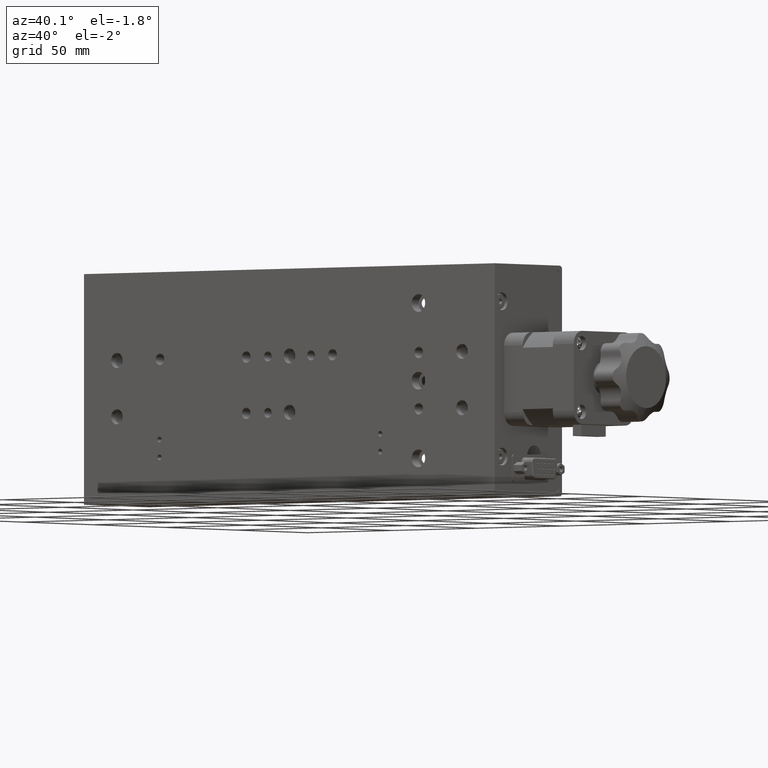
[diagram: clean part render]
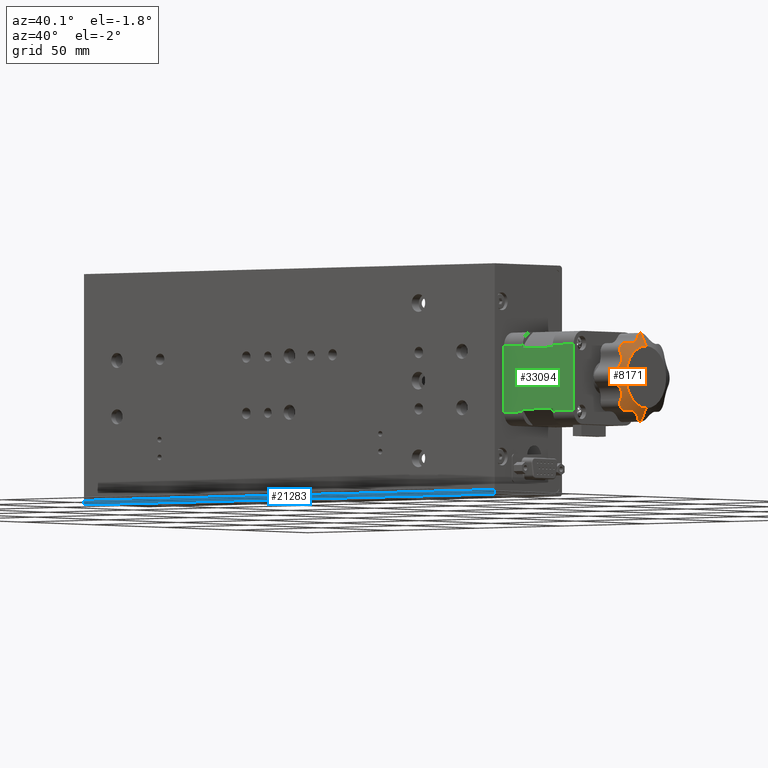
[diagram: same view with three faces highlighted in distinct colors, each labeled with its STEP entity id]
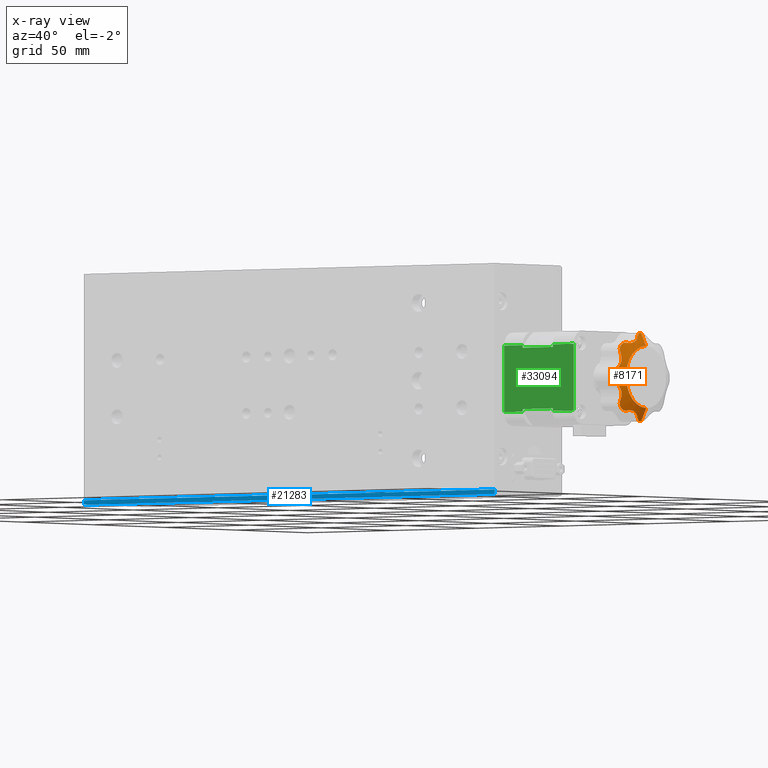
[diagram: x-ray of the same camera — body ghosted, the three highlighted faces saturated]
A machine part, auxiliary view with three faces highlighted in distinct colors.
The next image is the same camera in x-ray (body ghosted, the three faces saturated) — at least one of them is partly hidden behind the body in this view.
Their STEP definitions:

[orange] entity #8171 — the highlighted conical surface has half-angle 63 deg.
#38 = CARTESIAN_POINT ( 'NONE',  ( 184.4997281778311700, 24.48546536711743800, -18.66796470288773000 ) ) ;
#151 = B_SPLINE_CURVE_WITH_KNOTS ( 'NONE', 3,
 ( #9082, #958, #3710, #22827 ),
 .UNSPECIFIED., .F., .F.,
 ( 4, 4 ),
 ( 2.128886231613087700E-007, 0.0007293649178631331900 ),
 .UNSPECIFIED. ) ;
#436 = CIRCLE ( 'NONE', #9269, 19.88783151651546500 ) ;
#779 = CARTESIAN_POINT ( 'NONE',  ( 184.6624876279491000, 12.24651787764060100, -10.62220015011039800 ) ) ;
#785 = CARTESIAN_POINT ( 'NONE',  ( 185.4667672571537800, 20.66361874730982600, 15.57582878604097200 ) ) ;
#958 = CARTESIAN_POINT ( 'NONE',  ( 184.5792437131486800, 16.64946320855018100, 15.29355972806284900 ) ) ;
#969 = EDGE_LOOP ( 'NONE', ( #10336, #3343, #4688, #21521, #29404, #34514, #13272, #34087, #5129, #29670, #32625, #30097, #14862, #18901, #5487, #20476, #9121, #9356, #29349, #29970, #18298, #20904 ) ) ;
#1043 = CARTESIAN_POINT ( 'NONE',  ( 184.0000000000000300, 27.50000000000001100, -3.420913654640839100E-014 ) ) ;
#1274 = DIRECTION ( 'NONE',  ( 1.000000000000000000, -8.054943531356615600E-016, -1.390540119859488200E-015 ) ) ;
#1317 = CARTESIAN_POINT ( 'NONE',  ( 184.6624876279491300, 9.203129597308068500, 3.274810888164022800 ) ) ;
#1436 = VERTEX_POINT ( 'NONE', #24047 ) ;
#1473 = AXIS2_PLACEMENT_3D ( 'NONE', #29062, #12708, #31826 ) ;
#1595 = CARTESIAN_POINT ( 'NONE',  ( 185.4338197077304900, 20.15260713818911900, 15.41300267155289400 ) ) ;
#1679 = EDGE_CURVE ( 'NONE', #15190, #16986, #6298, .T. ) ;
#1818 = VERTEX_POINT ( 'NONE', #21448 ) ;
#1917 = CARTESIAN_POINT ( 'NONE',  ( 185.3225106727056800, 10.92889408719598500, -4.952345024021327400 ) ) ;
#1939 = B_SPLINE_CURVE_WITH_KNOTS ( 'NONE', 3,
 ( #779, #3515, #22636, #6258, #25397, #9010 ),
 .UNSPECIFIED., .F., .F.,
 ( 4, 2, 4 ),
 ( 2.128886231646257500E-007, 0.001425860909439205500, 0.002851508930255246100 ),
 .UNSPECIFIED. ) ;
#2037 = CARTESIAN_POINT ( 'NONE',  ( 184.7844690265437200, 12.30524556251451800, -10.28760725010459800 ) ) ;
#2066 = EDGE_CURVE ( 'NONE', #23944, #18555, #14516, .T. ) ;
#2104 = CARTESIAN_POINT ( 'NONE',  ( 185.4616876282445600, 20.49356804437579500, -15.51291625088309800 ) ) ;
#2370 = CARTESIAN_POINT ( 'NONE',  ( 185.4519293113118000, 12.04493243812661700, 7.180730379740627000 ) ) ;
#2535 = CARTESIAN_POINT ( 'NONE',  ( 184.3045522164380300, 12.20390211689355600, 11.75498693602056100 ) ) ;
#2667 = CARTESIAN_POINT ( 'NONE',  ( 184.5055536226903700, 24.50140130157206300, 18.65707282124847300 ) ) ;
#2705 = CIRCLE ( 'NONE', #5415, 19.88783151651546500 ) ;
#2782 = CARTESIAN_POINT ( 'NONE',  ( 184.1340889782051400, 25.56834694938514500, -19.53368578314135500 ) ) ;
#2868 = DIRECTION ( 'NONE',  ( -0.4539904997395432500, 4.398779807858269300E-016, 0.8910065241883696800 ) ) ;
#2870 = DIRECTION ( 'NONE',  ( -0.4539904997395457500, 4.006124158357226200E-016, -0.8910065241883684500 ) ) ;
#3105 = CARTESIAN_POINT ( 'NONE',  ( 184.8159028688820300, 17.29861524436926600, -15.17962068095771500 ) ) ;
#3266 = CARTESIAN_POINT ( 'NONE',  ( 184.0593759186634800, 7.784446417491411200, -1.499709208656855800 ) ) ;
#3343 = ORIENTED_EDGE ( 'NONE', *, *, #3745, .F. ) ;
#3360 = CARTESIAN_POINT ( 'NONE',  ( 185.0681554785692800, 18.15878121155510500, -15.14191605657909400 ) ) ;
#3425 = EDGE_CURVE ( 'NONE', #24530, #6699, #28095, .T. ) ;
#3515 = CARTESIAN_POINT ( 'NONE',  ( 184.4997279871318800, 12.16815759479220700, -11.06864707441475400 ) ) ;
#3540 = CIRCLE ( 'NONE', #25479, 19.88783151651546500 ) ;
#3552 = CARTESIAN_POINT ( 'NONE',  ( 184.3329612935859000, 15.84664911320747500, 15.30301273992485300 ) ) ;
#3710 = CARTESIAN_POINT ( 'NONE',  ( 184.5025853109542000, 16.41892421723933300, 15.31370849898456900 ) ) ;
#3745 = EDGE_CURVE ( 'NONE', #24530, #30451, #33211, .T. ) ;
#3789 = DIRECTION ( 'NONE',  ( 1.395605930821559500E-015, 0.0000000000000000000, 1.000000000000000000 ) ) ;
#4057 = CARTESIAN_POINT ( 'NONE',  ( 184.1340889782051100, 7.966314216858666700, 1.931653050614544200 ) ) ;
#4327 = EDGE_CURVE ( 'NONE', #6699, #16981, #2705, .T. ) ;
#4688 = ORIENTED_EDGE ( 'NONE', *, *, #3425, .T. ) ;
#4695 = CARTESIAN_POINT ( 'NONE',  ( 185.4519292569572700, 11.49407343093472300, -5.850839287976180400 ) ) ;
#4856 = CARTESIAN_POINT ( 'NONE',  ( 185.4690261800603000, 21.33720387912078900, -15.85146722573953900 ) ) ;
#5129 = ORIENTED_EDGE ( 'NONE', *, *, #2066, .T. ) ;
#5130 = CARTESIAN_POINT ( 'NONE',  ( 185.4715224530974600, 11.72754534817749700, 6.344713980106604400 ) ) ;
#5133 = CARTESIAN_POINT ( 'NONE',  ( 184.0000000000000300, 27.50000000000001100, -3.420913654640839100E-014 ) ) ;
#5290 = CARTESIAN_POINT ( 'NONE',  ( 184.5055536155510100, 12.18712781607042000, 11.07221325748905500 ) ) ;
#5415 = AXIS2_PLACEMENT_3D ( 'NONE', #13121, #32248, #15872 ) ;
#5439 = CARTESIAN_POINT ( 'NONE',  ( 184.6624876279491900, 24.22518911183561800, 18.29687040269187300 ) ) ;
#5487 = ORIENTED_EDGE ( 'NONE', *, *, #23164, .T. ) ;
#5495 = EDGE_CURVE ( 'NONE', #16986, #11264, #151, .T. ) ;
#5539 = EDGE_CURVE ( 'NONE', #9108, #6103, #29262, .T. ) ;
#5551 = CARTESIAN_POINT ( 'NONE',  ( 184.0000000000000000, 26.45167253179349800, -19.86018257591585400 ) ) ;
#5871 = VERTEX_POINT ( 'NONE', #32969 ) ;
#5985 = CARTESIAN_POINT ( 'NONE',  ( 184.0000000000000600, 27.50000000000001100, 19.88783151651546500 ) ) ;
#6014 = CARTESIAN_POINT ( 'NONE',  ( 184.1914101639428300, 8.102738441091874600, -2.124327132788316900 ) ) ;
#6103 = VERTEX_POINT ( 'NONE', #13537 ) ;
#6143 = VERTEX_POINT ( 'NONE', #27547 ) ;
#6258 = CARTESIAN_POINT ( 'NONE',  ( 184.1340889378582800, 12.32171329305557000, -12.44651678098834900 ) ) ;
#6290 = CARTESIAN_POINT ( 'NONE',  ( 184.2029685174676400, 15.33219541992860300, 15.22528648590329900 ) ) ;
#6291 = VECTOR ( 'NONE', #2868, 1000.000000000000100 ) ;
#6298 = B_SPLINE_CURVE_WITH_KNOTS ( 'NONE', 3,
 ( #7234, #23963, #34403, #9260, #34004, #9134, #17964, #21333, #785, #31357, #1595, #8550, #13090, #15710, #18001, #25756, #14132, #23346 ),
 .UNSPECIFIED., .F., .F.,
 ( 4, 2, 2, 2, 2, 2, 2, 2, 4 ),
 ( 2.564491608464168600E-007, 0.002139081010340496400, 0.003208493290930317800, 0.004277905571520138800, 0.004812611711815057000, 0.005347317852109973600, 0.006416730132699790200, 0.007486142413289606800, 0.008555554693879422600 ),
 .UNSPECIFIED. ) ;
#6317 = VECTOR ( 'NONE', #2870, 1000.000000000000000 ) ;
#6699 = VERTEX_POINT ( 'NONE', #5985 ) ;
#6795 = CARTESIAN_POINT ( 'NONE',  ( 184.0000000000000000, 7.639817424084204900, 1.048327468206284200 ) ) ;
#7234 = CARTESIAN_POINT ( 'NONE',  ( 184.6624876279491900, 24.22518911183561800, 18.29687040269187300 ) ) ;
#7286 = CARTESIAN_POINT ( 'NONE',  ( 184.9063469930233300, 9.759133075833030800, -3.664777813653861600 ) ) ;
#7306 = EDGE_CURVE ( 'NONE', #11264, #23944, #26188, .T. ) ;
#7413 = CARTESIAN_POINT ( 'NONE',  ( 185.4715224592072200, 11.86080000766872200, -6.666419164477229500 ) ) ;
#7542 = CARTESIAN_POINT ( 'NONE',  ( 184.0593759180045800, 14.61945291401773200, -15.00145618236275900 ) ) ;
#7600 = CARTESIAN_POINT ( 'NONE',  ( 185.3962144957780000, 22.12557803211641200, -16.28608713752259600 ) ) ;
#7864 = CARTESIAN_POINT ( 'NONE',  ( 185.4479042270338300, 11.49155629202330800, 5.859439804940299400 ) ) ;
#8038 = CARTESIAN_POINT ( 'NONE',  ( 184.6624876279491300, 12.24651787764047300, 10.62220015011035000 ) ) ;
#8050 = DIRECTION ( 'NONE',  ( 1.982541115402067700E-015, 0.0000000000000000000, 1.000000000000000000 ) ) ;
#8085 = CARTESIAN_POINT ( 'NONE',  ( 184.4321513908461700, 16.18629150101511300, 15.31370849898456900 ) ) ;
#8171 = ADVANCED_FACE ( 'NONE', ( #28418 ), #25011, .T. ) ;
#8245 = EDGE_CURVE ( 'NONE', #21032, #21211, #19927, .T. ) ;
#8284 = CARTESIAN_POINT ( 'NONE',  ( 184.0000000000000300, 12.71545076329402100, -13.30199031336000100 ) ) ;
#8377 = CARTESIAN_POINT ( 'NONE',  ( 187.0000000000000600, 27.50000000000000700, 13.99999999999994800 ) ) ;
#8393 = AXIS2_PLACEMENT_3D ( 'NONE', #10680, #16047, #8050 ) ;
#8490 = AXIS2_PLACEMENT_3D ( 'NONE', #29329, #12947, #32066 ) ;
#8550 = CARTESIAN_POINT ( 'NONE',  ( 185.3782249368033200, 19.63695829397433100, 15.28219731838588300 ) ) ;
#8758 = CARTESIAN_POINT ( 'NONE',  ( 184.3674099949589000, 8.520441163076050400, -2.678406106052258800 ) ) ;
#9010 = CARTESIAN_POINT ( 'NONE',  ( 184.0000000000000300, 12.71545076329402100, -13.30199031336000100 ) ) ;
#9045 = CARTESIAN_POINT ( 'NONE',  ( 184.0383439934945200, 14.50770642523900700, 14.96195996795478100 ) ) ;
#9082 = CARTESIAN_POINT ( 'NONE',  ( 184.6624876279491300, 16.87779984988899100, 15.25348212235906000 ) ) ;
#9108 = VERTEX_POINT ( 'NONE', #32080 ) ;
#9121 = ORIENTED_EDGE ( 'NONE', *, *, #19727, .T. ) ;
#9134 = CARTESIAN_POINT ( 'NONE',  ( 185.4519292569573000, 21.64916071202339500, 16.00592656906511400 ) ) ;
#9260 = CARTESIAN_POINT ( 'NONE',  ( 185.3225106727057600, 22.54765497597828600, 16.57110591280388000 ) ) ;
#9269 = AXIS2_PLACEMENT_3D ( 'NONE', #29031, #12681, #31795 ) ;
#9356 = ORIENTED_EDGE ( 'NONE', *, *, #21442, .T. ) ;
#9660 = CARTESIAN_POINT ( 'NONE',  ( 184.6624876279491300, 16.87779984988899100, 15.25348212235906000 ) ) ;
#9757 = EDGE_CURVE ( 'NONE', #30451, #6143, #34559, .T. ) ;
#9888 = B_SPLINE_CURVE_WITH_KNOTS ( 'NONE', 3,
 ( #16946, #3105, #19726, #3360 ),
 .UNSPECIFIED., .F., .F.,
 ( 4, 4 ),
 ( 2.131679597235992300E-007, 0.001345775553808593400 ),
 .UNSPECIFIED. ) ;
#10164 = CARTESIAN_POINT ( 'NONE',  ( 185.4479042614597400, 12.03707112431108300, -7.176428988280855800 ) ) ;
#10180 = EDGE_CURVE ( 'NONE', #14015, #9108, #32371, .T. ) ;
#10290 = CARTESIAN_POINT ( 'NONE',  ( 184.1914101614185300, 15.28619092501267400, -15.21806130307870400 ) ) ;
#10336 = ORIENTED_EDGE ( 'NONE', *, *, #9757, .F. ) ;
#10344 = CARTESIAN_POINT ( 'NONE',  ( 185.2481759545138100, 22.85061050871392800, -16.80897287478969600 ) ) ;
#10378 = CARTESIAN_POINT ( 'NONE',  ( 184.9063472167102600, 12.36392355791021900, 9.953297449060510600 ) ) ;
#10506 = CARTESIAN_POINT ( 'NONE',  ( 184.6624876279491300, 12.24651787764047300, 10.62220015011035000 ) ) ;
#10626 = CARTESIAN_POINT ( 'NONE',  ( 185.3782248456929300, 11.13384416448087000, 5.246134681423643400 ) ) ;
#10680 = CARTESIAN_POINT ( 'NONE',  ( 187.0000000000000300, 27.50000000000000700, -3.664603343001005000E-014 ) ) ;
#10900 = CARTESIAN_POINT ( 'NONE',  ( 184.6624876279491900, 24.22518911183561800, 18.29687040269187300 ) ) ;
#11264 = VERTEX_POINT ( 'NONE', #8085 ) ;
#11483 = EDGE_CURVE ( 'NONE', #5871, #12739, #1939, .T. ) ;
#11539 = CARTESIAN_POINT ( 'NONE',  ( 184.5812778788823600, 9.017969995348615000, -3.144944577088828000 ) ) ;
#11582 = DIRECTION ( 'NONE',  ( 1.395605930821559500E-015, 0.0000000000000000000, 1.000000000000000000 ) ) ;
#11613 = CARTESIAN_POINT ( 'NONE',  ( 184.0000000000000300, 14.19800968663947300, 14.78454923670558000 ) ) ;
#11854 = EDGE_CURVE ( 'NONE', #18555, #14015, #14381, .T. ) ;
#12681 = DIRECTION ( 'NONE',  ( 1.000000000000000000, -8.054943531356615600E-016, -1.390540119859488200E-015 ) ) ;
#12708 = DIRECTION ( 'NONE',  ( 1.000000000000000000, -8.054943531356615600E-016, -1.390540119859488200E-015 ) ) ;
#12739 = VERTEX_POINT ( 'NONE', #8284 ) ;
#12904 = CARTESIAN_POINT ( 'NONE',  ( 185.3782249368032600, 12.21780268161389700, -7.863041706025180500 ) ) ;
#12915 = CARTESIAN_POINT ( 'NONE',  ( 184.0256971238457600, 14.40556019771426800, -14.90344518668382000 ) ) ;
#12947 = DIRECTION ( 'NONE',  ( 1.000000000000000000, -8.054943531356615600E-016, -1.390540119859488200E-015 ) ) ;
#12968 = CARTESIAN_POINT ( 'NONE',  ( 185.0681554785692800, 18.15878121155510500, -15.14191605657909400 ) ) ;
#13036 = CARTESIAN_POINT ( 'NONE',  ( 184.3674099899103900, 15.97334434495742000, -15.31449387680387600 ) ) ;
#13088 = CARTESIAN_POINT ( 'NONE',  ( 184.8680802084595600, 23.89641639276961600, -17.82811584045509100 ) ) ;
#13090 = CARTESIAN_POINT ( 'NONE',  ( 185.3234121039777200, 19.28953390261072400, 15.22019407640730800 ) ) ;
#13121 = CARTESIAN_POINT ( 'NONE',  ( 184.0000000000000300, 27.50000000000001100, -3.420913654640839100E-014 ) ) ;
#13272 = ORIENTED_EDGE ( 'NONE', *, *, #5495, .T. ) ;
#13336 = CARTESIAN_POINT ( 'NONE',  ( 185.1806272532480800, 10.48796693978338400, 4.407491966382813200 ) ) ;
#13522 = CARTESIAN_POINT ( 'NONE',  ( 184.0593759186635300, 26.00029079134296600, 19.71555358250857600 ) ) ;
#13537 = CARTESIAN_POINT ( 'NONE',  ( 184.0000000000000000, 7.639817424084204900, 1.048327468206284200 ) ) ;
#13783 = CARTESIAN_POINT ( 'NONE',  ( 184.6624876279491300, 24.22518911183572900, -18.29687040269192300 ) ) ;
#14015 = VERTEX_POINT ( 'NONE', #24495 ) ;
#14132 = CARTESIAN_POINT ( 'NONE',  ( 184.7844690265437700, 17.21239274989482100, 15.19475443748518000 ) ) ;
#14381 = B_SPLINE_CURVE_WITH_KNOTS ( 'NONE', 3,
 ( #24276, #27055, #16153, #35303, #18919, #2535, #21651, #5290, #24384, #8038 ),
 .UNSPECIFIED., .F., .F.,
 ( 4, 2, 2, 2, 4 ),
 ( 1.845941825708605100E-006, 0.0007127976189506830600, 0.001423749296075657700, 0.002134700973200631900, 0.002845652650325606500 ),
 .UNSPECIFIED. ) ;
#14393 = CARTESIAN_POINT ( 'NONE',  ( 184.4321513908461700, 16.18629150101511300, 15.31370849898456900 ) ) ;
#14464 = CARTESIAN_POINT ( 'NONE',  ( 184.0000000000000000, 26.45167253179349800, -19.86018257591585400 ) ) ;
#14516 = CIRCLE ( 'NONE', #15568, 19.88783151651546500 ) ;
#14862 = ORIENTED_EDGE ( 'NONE', *, *, #31138, .T. ) ;
#15101 = VERTEX_POINT ( 'NONE', #16144 ) ;
#15190 = VERTEX_POINT ( 'NONE', #10900 ) ;
#15568 = AXIS2_PLACEMENT_3D ( 'NONE', #5133, #1274, #11582 ) ;
#15649 = CARTESIAN_POINT ( 'NONE',  ( 185.1806272895484800, 12.35410860756161000, -8.912756354989081600 ) ) ;
#15710 = CARTESIAN_POINT ( 'NONE',  ( 185.1806272895485700, 18.58724364501040300, 15.14589139243814100 ) ) ;
#15779 = CARTESIAN_POINT ( 'NONE',  ( 184.5812778587598800, 16.65504283533704200, -15.29258039298539800 ) ) ;
#15872 = DIRECTION ( 'NONE',  ( 1.395605930821559500E-015, 0.0000000000000000000, 1.000000000000000000 ) ) ;
#15987 = CARTESIAN_POINT ( 'NONE',  ( 185.1076970187258700, 12.39135832512152600, 9.269836976318593700 ) ) ;
#16047 = DIRECTION ( 'NONE',  ( -1.000000000000000000, 8.054943531356615600E-016, 1.390540119859488200E-015 ) ) ;
#16110 = CARTESIAN_POINT ( 'NONE',  ( 184.8957180678858900, 9.746095789160055000, 3.684008748971941700 ) ) ;
#16144 = CARTESIAN_POINT ( 'NONE',  ( 184.0000000000000000, 7.639817424084204900, -1.048327468206338400 ) ) ;
#16153 = CARTESIAN_POINT ( 'NONE',  ( 184.0593759180046600, 12.49854381763695500, 12.88054708598174800 ) ) ;
#16292 = CARTESIAN_POINT ( 'NONE',  ( 184.1914101639428900, 25.37567286721144200, 19.39726155890809500 ) ) ;
#16322 = B_SPLINE_CURVE_WITH_KNOTS ( 'NONE', 3,
 ( #16865, #33287, #3266, #22397, #6014, #25149, #8758, #27867, #11539, #30626 ),
 .UNSPECIFIED., .F., .F.,
 ( 4, 2, 2, 2, 4 ),
 ( 1.845941822942555700E-006, 0.0007127976259173259300, 0.001423749310011708100, 0.002134700994106089300, 0.002845652678200470300 ),
 .UNSPECIFIED. ) ;
#16393 = CARTESIAN_POINT ( 'NONE',  ( 184.3610719225172800, 24.80607272539044000, -18.99348869398903600 ) ) ;
#16586 = VERTEX_POINT ( 'NONE', #29790 ) ;
#16865 = CARTESIAN_POINT ( 'NONE',  ( 184.0000000000000000, 7.639817424084204900, -1.048327468206338400 ) ) ;
#16946 = CARTESIAN_POINT ( 'NONE',  ( 184.6624876279491000, 16.87779984988912200, -15.25348212235911300 ) ) ;
#16981 = VERTEX_POINT ( 'NONE', #28784 ) ;
#16986 = VERTEX_POINT ( 'NONE', #9660 ) ;
#17033 = CARTESIAN_POINT ( 'NONE',  ( 184.3809031888826600, 16.01702634573043900, 15.31370849898457100 ) ) ;
#17095 = CARTESIAN_POINT ( 'NONE',  ( 187.0000000000000000, 27.50000000000001100, -14.00000000000003700 ) ) ;
#17677 = CARTESIAN_POINT ( 'NONE',  ( 184.4997281778312300, 8.832035297112309300, 3.014534632882243800 ) ) ;
#17964 = CARTESIAN_POINT ( 'NONE',  ( 185.4712212983298200, 21.33165703847993200, 15.84595546684293100 ) ) ;
#18001 = CARTESIAN_POINT ( 'NONE',  ( 185.0936132756211500, 18.23762914353434200, 15.13437783158853700 ) ) ;
#18298 = ORIENTED_EDGE ( 'NONE', *, *, #8245, .T. ) ;
#18299 = CARTESIAN_POINT ( 'NONE',  ( 185.1076968662358700, 10.26181197080224700, -4.128657845916117200 ) ) ;
#18416 = CARTESIAN_POINT ( 'NONE',  ( 184.8957182112122300, 12.34110641053214700, -9.948918039722388000 ) ) ;
#18425 = CARTESIAN_POINT ( 'NONE',  ( 184.0000000000000000, 14.19800968663961500, -14.78454923670564400 ) ) ;
#18476 = CARTESIAN_POINT ( 'NONE',  ( 185.4413483650830600, 20.20787927955925100, -15.42465185180261500 ) ) ;
#18555 = VERTEX_POINT ( 'NONE', #31679 ) ;
#18755 = CARTESIAN_POINT ( 'NONE',  ( 184.0000000000000000, 14.19800968663961500, -14.78454923670564400 ) ) ;
#18761 = CARTESIAN_POINT ( 'NONE',  ( 185.3777368135645200, 12.21840039836448900, 7.866246472115230800 ) ) ;
#18880 = CARTESIAN_POINT ( 'NONE',  ( 184.6624876279491300, 9.203129597308068500, 3.274810888164022800 ) ) ;
#18901 = ORIENTED_EDGE ( 'NONE', *, *, #30394, .T. ) ;
#18919 = CARTESIAN_POINT ( 'NONE',  ( 184.1914101614185900, 12.28193869692102100, 12.21380907498684300 ) ) ;
#19060 = CARTESIAN_POINT ( 'NONE',  ( 184.3674099949589600, 24.82159389394747300, 18.97955883692390700 ) ) ;
#19160 = CARTESIAN_POINT ( 'NONE',  ( 184.6624876279491300, 24.22518911183572900, -18.29687040269192300 ) ) ;
#19726 = CARTESIAN_POINT ( 'NONE',  ( 184.9521885518349800, 17.72529401834012200, -15.14191605657909400 ) ) ;
#19727 = EDGE_CURVE ( 'NONE', #12739, #24312, #33810, .T. ) ;
#19927 = B_SPLINE_CURVE_WITH_KNOTS ( 'NONE', 3,
 ( #19160, #38, #16393, #2782, #21903, #5551 ),
 .UNSPECIFIED., .F., .F.,
 ( 4, 2, 4 ),
 ( 2.561101793522169900E-007, 0.001425904833248683100, 0.002851553556318014000 ),
 .UNSPECIFIED. ) ;
#20170 = DIRECTION ( 'NONE',  ( 1.000000000000000000, -8.054943531356615600E-016, -1.390540119859488200E-015 ) ) ;
#20434 = CARTESIAN_POINT ( 'NONE',  ( 184.3610719225174000, 8.506511306011002900, 2.693927274609255300 ) ) ;
#20476 = ORIENTED_EDGE ( 'NONE', *, *, #11483, .T. ) ;
#20848 = B_SPLINE_CURVE_WITH_KNOTS ( 'NONE', 3,
 ( #26452, #7286, #18299, #1917, #21024, #4695, #23783, #7413, #26568, #10164, #29281, #12904, #32018, #15649, #34800, #18416, #2037, #21150 ),
 .UNSPECIFIED., .F., .F.,
 ( 4, 2, 2, 2, 2, 2, 2, 2, 4 ),
 ( 2.564491608337572600E-007, 0.002139081010340396200, 0.003208493290930175500, 0.004277905571519954900, 0.004812611711814844500, 0.005347317852109733300, 0.006416730132699517900, 0.007486142413289302400, 0.008555554693879087800 ),
 .UNSPECIFIED. ) ;
#20904 = ORIENTED_EDGE ( 'NONE', *, *, #25336, .T. ) ;
#21024 = CARTESIAN_POINT ( 'NONE',  ( 185.3777367299795500, 11.13200074520000600, -5.243445996837364100 ) ) ;
#21032 = VERTEX_POINT ( 'NONE', #13783 ) ;
#21150 = CARTESIAN_POINT ( 'NONE',  ( 184.6624876279491000, 12.24651787764060100, -10.62220015011039800 ) ) ;
#21209 = CARTESIAN_POINT ( 'NONE',  ( 185.4756893889789100, 21.05743076933264700, -15.72575422500005400 ) ) ;
#21211 = VERTEX_POINT ( 'NONE', #14464 ) ;
#21333 = CARTESIAN_POINT ( 'NONE',  ( 185.4715224592073400, 20.83358083552232300, 15.63919999233109200 ) ) ;
#21442 = EDGE_CURVE ( 'NONE', #24312, #1436, #27228, .T. ) ;
#21448 = CARTESIAN_POINT ( 'NONE',  ( 185.0681554785692800, 18.15878121155510500, -15.14191605657909400 ) ) ;
#21471 = CARTESIAN_POINT ( 'NONE',  ( 185.4712213111370400, 11.93354007121230400, 6.843104834371478000 ) ) ;
#21521 = ORIENTED_EDGE ( 'NONE', *, *, #4327, .T. ) ;
#21651 = CARTESIAN_POINT ( 'NONE',  ( 184.3674099899104100, 12.18550612319584800, 11.52665565504206500 ) ) ;
#21677 = CARTESIAN_POINT ( 'NONE',  ( 184.0000000000000600, 26.45167253179350900, 19.86018257591578300 ) ) ;
#21807 = CARTESIAN_POINT ( 'NONE',  ( 184.5812778788824700, 24.35505542291086600, 18.48203000465131800 ) ) ;
#21903 = CARTESIAN_POINT ( 'NONE',  ( 184.0515187176439400, 25.98888942864408600, -19.73450244827626300 ) ) ;
#22012 = CARTESIAN_POINT ( 'NONE',  ( 187.0000000000000000, 27.50000000000000700, -14.00000000000002100 ) ) ;
#22321 = CARTESIAN_POINT ( 'NONE',  ( 187.0000000000000600, 27.50000000000000700, 13.99999999999994800 ) ) ;
#22397 = CARTESIAN_POINT ( 'NONE',  ( 184.1420244716242400, 7.984064295957398200, -1.921630104900801600 ) ) ;
#22636 = CARTESIAN_POINT ( 'NONE',  ( 184.3610722483293800, 12.16468096182709100, -11.52552917857907900 ) ) ;
#22677 = CARTESIAN_POINT ( 'NONE',  ( 184.2438062084029600, 15.50362185888310200, 15.25881527042830000 ) ) ;
#22827 = CARTESIAN_POINT ( 'NONE',  ( 184.4321513908461700, 16.18629150101511300, 15.31370849898456900 ) ) ;
#23164 = EDGE_CURVE ( 'NONE', #16586, #5871, #20848, .T. ) ;
#23171 = CARTESIAN_POINT ( 'NONE',  ( 184.0515187176439200, 7.765497551723780300, 1.511110571355628100 ) ) ;
#23346 = CARTESIAN_POINT ( 'NONE',  ( 184.6624876279491300, 16.87779984988899100, 15.25348212235906000 ) ) ;
#23783 = CARTESIAN_POINT ( 'NONE',  ( 185.4712212983297900, 11.65404453315689700, -6.168342961519626600 ) ) ;
#23944 = VERTEX_POINT ( 'NONE', #11613 ) ;
#23962 = CARTESIAN_POINT ( 'NONE',  ( 185.4291772330564900, 21.87017332738024700, -16.13133732989445700 ) ) ;
#23963 = CARTESIAN_POINT ( 'NONE',  ( 184.9063469930234500, 23.83522218634582000, 17.74086692416686600 ) ) ;
#24047 = CARTESIAN_POINT ( 'NONE',  ( 184.6624876279491000, 16.87779984988912200, -15.25348212235911300 ) ) ;
#24232 = CARTESIAN_POINT ( 'NONE',  ( 185.4667672483695900, 11.65217417295864700, 6.179722338723240500 ) ) ;
#24276 = CARTESIAN_POINT ( 'NONE',  ( 184.0000000000000300, 12.71545076329385900, 13.30199031335994600 ) ) ;
#24312 = VERTEX_POINT ( 'NONE', #18755 ) ;
#24384 = CARTESIAN_POINT ( 'NONE',  ( 184.5812778587599300, 12.20741960701432700, 10.84495716466245700 ) ) ;
#24401 = CARTESIAN_POINT ( 'NONE',  ( 184.0256971240977200, 26.22084002322583300, 19.79749433396677100 ) ) ;
#24495 = CARTESIAN_POINT ( 'NONE',  ( 184.6624876279491300, 12.24651787764047300, 10.62220015011035000 ) ) ;
#24530 = VERTEX_POINT ( 'NONE', #22321 ) ;
#24966 = EDGE_CURVE ( 'NONE', #16981, #15190, #27857, .T. ) ;
#25011 = CONICAL_SURFACE ( 'NONE', #8393, 13.99999999999998400, 1.099557428756430000 ) ;
#25149 = CARTESIAN_POINT ( 'NONE',  ( 184.3045522205685000, 8.371994495727101100, -2.503943576036402200 ) ) ;
#25336 = EDGE_CURVE ( 'NONE', #21211, #6143, #436, .T. ) ;
#25397 = CARTESIAN_POINT ( 'NONE',  ( 184.0515186887565400, 12.47708309700913700, -12.88588420570722800 ) ) ;
#25438 = CARTESIAN_POINT ( 'NONE',  ( 184.0941526861526800, 14.83045380898520400, 15.09278166667648500 ) ) ;
#25479 = AXIS2_PLACEMENT_3D ( 'NONE', #1043, #20170, #3789 ) ;
#25600 = EDGE_CURVE ( 'NONE', #1436, #1818, #9888, .T. ) ;
#25756 = CARTESIAN_POINT ( 'NONE',  ( 184.8957182112122000, 17.55108196027705200, 15.15889358946756200 ) ) ;
#26188 = B_SPLINE_CURVE_WITH_KNOTS ( 'NONE', 3,
 ( #14393, #17033, #3552, #22677, #6290, #25438, #9045, #28155 ),
 .UNSPECIFIED., .F., .F.,
 ( 4, 2, 2, 4 ),
 ( 0.0007293649178631331900, 0.001259900920961137000, 0.001790436924059145900, 0.002851508930255163700 ),
 .UNSPECIFIED. ) ;
#26452 = CARTESIAN_POINT ( 'NONE',  ( 184.6624876279491000, 9.203129597308068500, -3.274810888164069400 ) ) ;
#26568 = CARTESIAN_POINT ( 'NONE',  ( 185.4667672571537800, 11.92417121395884300, -6.836381252689726300 ) ) ;
#26696 = CARTESIAN_POINT ( 'NONE',  ( 184.1420244698525200, 15.05894719184567700, -15.15864815293861800 ) ) ;
#26748 = CARTESIAN_POINT ( 'NONE',  ( 185.3059522471157300, 22.61508061880200100, -16.62424057949537500 ) ) ;
#27009 = CARTESIAN_POINT ( 'NONE',  ( 185.4338196571570400, 11.40596968992724800, 5.703246881861035800 ) ) ;
#27055 = CARTESIAN_POINT ( 'NONE',  ( 184.0256971238458200, 12.59655481331589200, 13.09443980228520800 ) ) ;
#27228 = B_SPLINE_CURVE_WITH_KNOTS ( 'NONE', 3,
 ( #18425, #12915, #7542, #26696, #10290, #29412, #13036, #32150, #15779, #34926 ),
 .UNSPECIFIED., .F., .F.,
 ( 4, 2, 2, 2, 4 ),
 ( 1.845941825710805000E-006, 0.0007127976189506631200, 0.001423749296075615400, 0.002134700973200567700, 0.002845652650325519700 ),
 .UNSPECIFIED. ) ;
#27547 = CARTESIAN_POINT ( 'NONE',  ( 184.0000000000000000, 27.50000000000001100, -19.88783151651549400 ) ) ;
#27857 = B_SPLINE_CURVE_WITH_KNOTS ( 'NONE', 3,
 ( #21677, #24401, #13522, #32672, #16292, #35433, #19060, #2667, #21807, #5439 ),
 .UNSPECIFIED., .F., .F.,
 ( 4, 2, 2, 2, 4 ),
 ( 1.845941822925545800E-006, 0.0007127976259173466400, 0.001423749310011767800, 0.002134700994106188700, 0.002845652678200610000 ),
 .UNSPECIFIED. ) ;
#27867 = CARTESIAN_POINT ( 'NONE',  ( 184.5055536226903700, 8.842927178751470100, -2.998598698427655100 ) ) ;
#28095 = LINE ( 'NONE', #8377, #6291 ) ;
#28155 = CARTESIAN_POINT ( 'NONE',  ( 184.0000000000000300, 14.19800968663947300, 14.78454923670558000 ) ) ;
#28418 = FACE_OUTER_BOUND ( 'NONE', #969, .T. ) ;
#28784 = CARTESIAN_POINT ( 'NONE',  ( 184.0000000000000600, 26.45167253179350900, 19.86018257591578300 ) ) ;
#29031 = CARTESIAN_POINT ( 'NONE',  ( 184.0000000000000300, 27.50000000000001100, -3.420913654640839100E-014 ) ) ;
#29062 = CARTESIAN_POINT ( 'NONE',  ( 187.0000000000000300, 27.50000000000000700, -3.664603343001005000E-014 ) ) ;
#29221 = CARTESIAN_POINT ( 'NONE',  ( 185.2234977601907000, 18.73945443920684500, -15.14191605657909700 ) ) ;
#29262 = B_SPLINE_CURVE_WITH_KNOTS ( 'NONE', 3,
 ( #1317, #17677, #20434, #4057, #23171, #6795 ),
 .UNSPECIFIED., .F., .F.,
 ( 4, 2, 4 ),
 ( 2.561101793818367300E-007, 0.001425904833248745800, 0.002851553556318110200 ),
 .UNSPECIFIED. ) ;
#29281 = CARTESIAN_POINT ( 'NONE',  ( 185.4338197077304400, 12.08699732844690500, -7.347392861810414300 ) ) ;
#29329 = CARTESIAN_POINT ( 'NONE',  ( 184.0000000000000300, 27.50000000000001100, -3.420913654640839100E-014 ) ) ;
#29349 = ORIENTED_EDGE ( 'NONE', *, *, #25600, .T. ) ;
#29404 = ORIENTED_EDGE ( 'NONE', *, *, #24966, .T. ) ;
#29412 = CARTESIAN_POINT ( 'NONE',  ( 184.3045522164380300, 15.74501306397894000, -15.29609788310616600 ) ) ;
#29470 = CARTESIAN_POINT ( 'NONE',  ( 185.0435970462970700, 23.51410846094771400, -17.39665301249573300 ) ) ;
#29670 = ORIENTED_EDGE ( 'NONE', *, *, #11854, .T. ) ;
#29731 = CARTESIAN_POINT ( 'NONE',  ( 185.3234119966749300, 10.93202094866339100, 4.956625722603851300 ) ) ;
#29790 = CARTESIAN_POINT ( 'NONE',  ( 184.6624876279491000, 9.203129597308068500, -3.274810888164069400 ) ) ;
#29970 = ORIENTED_EDGE ( 'NONE', *, *, #31274, .T. ) ;
#30097 = ORIENTED_EDGE ( 'NONE', *, *, #5539, .T. ) ;
#30394 = EDGE_CURVE ( 'NONE', #15101, #16586, #16322, .T. ) ;
#30451 = VERTEX_POINT ( 'NONE', #17095 ) ;
#30626 = CARTESIAN_POINT ( 'NONE',  ( 184.6624876279491000, 9.203129597308068500, -3.274810888164069400 ) ) ;
#31138 = EDGE_CURVE ( 'NONE', #6103, #15101, #3540, .T. ) ;
#31216 = B_SPLINE_CURVE_WITH_KNOTS ( 'NONE', 3,
 ( #12968, #29221, #34863, #18476, #2104, #21209, #4856, #23962, #7600, #26748, #10344, #29470, #13088, #32209 ),
 .UNSPECIFIED., .F., .F.,
 ( 4, 2, 2, 2, 2, 2, 4 ),
 ( 0.001345775553808593400, 0.003148209549154262800, 0.004049426546827093200, 0.004950643544499923700, 0.005851860542172753300, 0.006753077539845582900, 0.008555511535191250700 ),
 .UNSPECIFIED. ) ;
#31274 = EDGE_CURVE ( 'NONE', #1818, #21032, #31216, .T. ) ;
#31357 = CARTESIAN_POINT ( 'NONE',  ( 185.4479042614597400, 20.32357101171868800, 15.46292887568872700 ) ) ;
#31679 = CARTESIAN_POINT ( 'NONE',  ( 184.0000000000000300, 12.71545076329385900, 13.30199031335994600 ) ) ;
#31795 = DIRECTION ( 'NONE',  ( 1.395605930821559500E-015, 0.0000000000000000000, 1.000000000000000000 ) ) ;
#31826 = DIRECTION ( 'NONE',  ( 1.982541115402067700E-015, 0.0000000000000000000, 1.000000000000000000 ) ) ;
#32018 = CARTESIAN_POINT ( 'NONE',  ( 185.3234121039778000, 12.27980592359246300, -8.210466097388776400 ) ) ;
#32066 = DIRECTION ( 'NONE',  ( 1.395605930821559500E-015, 0.0000000000000000000, 1.000000000000000000 ) ) ;
#32080 = CARTESIAN_POINT ( 'NONE',  ( 184.6624876279491300, 9.203129597308068500, 3.274810888164022800 ) ) ;
#32150 = CARTESIAN_POINT ( 'NONE',  ( 184.5055536155509500, 16.42778674251043100, -15.31287218392930800 ) ) ;
#32209 = CARTESIAN_POINT ( 'NONE',  ( 184.6624876279491300, 24.22518911183572900, -18.29687040269192300 ) ) ;
#32248 = DIRECTION ( 'NONE',  ( 1.000000000000000000, -8.054943531356615600E-016, -1.390540119859488200E-015 ) ) ;
#32371 = B_SPLINE_CURVE_WITH_KNOTS ( 'NONE', 3,
 ( #10506, #10378, #15987, #35124, #18761, #2370, #21471, #5130, #24232, #7864, #27009, #10626, #29731, #13336, #32480, #16110, #35256, #18880 ),
 .UNSPECIFIED., .F., .F.,
 ( 4, 2, 2, 2, 2, 2, 2, 2, 4 ),
 ( 2.131679597027041000E-007, 0.002139037759767492700, 0.003208450055671387900, 0.004277862351575282200, 0.004812568499527228300, 0.005347274647479176100, 0.006416686943383069100, 0.007486099239286962200, 0.008555511535190855200 ),
 .UNSPECIFIED. ) ;
#32480 = CARTESIAN_POINT ( 'NONE',  ( 185.0936131362179300, 10.24889319251891200, 4.152135574547502400 ) ) ;
#32625 = ORIENTED_EDGE ( 'NONE', *, *, #10180, .T. ) ;
#32672 = CARTESIAN_POINT ( 'NONE',  ( 184.1420244716242400, 25.57836989509898000, 19.51593570404258000 ) ) ;
#32969 = CARTESIAN_POINT ( 'NONE',  ( 184.6624876279491000, 12.24651787764060100, -10.62220015011039800 ) ) ;
#33211 = CIRCLE ( 'NONE', #1473, 13.99999999999998400 ) ;
#33287 = CARTESIAN_POINT ( 'NONE',  ( 184.0256971240977500, 7.702505666033227200, -1.279159976773998700 ) ) ;
#33810 = CIRCLE ( 'NONE', #8490, 19.88783151651546500 ) ;
#34004 = CARTESIAN_POINT ( 'NONE',  ( 185.3777367299795500, 22.25655400316224300, 16.36799925479984800 ) ) ;
#34087 = ORIENTED_EDGE ( 'NONE', *, *, #7306, .T. ) ;
#34403 = CARTESIAN_POINT ( 'NONE',  ( 185.1076968662359300, 23.37134215408353200, 17.23818802919763700 ) ) ;
#34514 = ORIENTED_EDGE ( 'NONE', *, *, #1679, .T. ) ;
#34559 = LINE ( 'NONE', #22012, #6317 ) ;
#34800 = CARTESIAN_POINT ( 'NONE',  ( 185.0936132756212100, 12.36562216841119400, -9.262370856465121700 ) ) ;
#34863 = CARTESIAN_POINT ( 'NONE',  ( 185.3424863418964000, 19.33985912540868000, -15.21243302920856300 ) ) ;
#34926 = CARTESIAN_POINT ( 'NONE',  ( 184.6624876279491000, 16.87779984988912200, -15.25348212235911300 ) ) ;
#35124 = CARTESIAN_POINT ( 'NONE',  ( 185.3225106314465100, 12.28062190200839200, 8.215704798985811400 ) ) ;
#35256 = CARTESIAN_POINT ( 'NONE',  ( 184.7844689233043000, 9.481249014669055300, 3.469876887382225700 ) ) ;
#35303 = CARTESIAN_POINT ( 'NONE',  ( 184.1420244698525400, 12.34135184706109300, 12.44105280815377400 ) ) ;
#35433 = CARTESIAN_POINT ( 'NONE',  ( 184.3045522205685000, 24.99605642396333500, 19.12800550427286000 ) ) ;

[blue] entity #21283 — the highlighted planar face has unit normal (0, 1, 0).
#220 = VECTOR ( 'NONE', #22373, 1000.000000000000000 ) ;
#898 = DIRECTION ( 'NONE',  ( -0.0000000000000000000, -0.0000000000000000000, -1.000000000000000000 ) ) ;
#2000 = CARTESIAN_POINT ( 'NONE',  ( 121.0000000000000000, -1.421085471520200400E-014, -52.00000000000000700 ) ) ;
#2463 = LINE ( 'NONE', #2000, #8873 ) ;
#2737 = FACE_OUTER_BOUND ( 'NONE', #8656, .T. ) ;
#4279 = EDGE_CURVE ( 'NONE', #9451, #12482, #9547, .T. ) ;
#4450 = VERTEX_POINT ( 'NONE', #13717 ) ;
#6827 = CARTESIAN_POINT ( 'NONE',  ( 121.0000000000000000, -1.421085471520200400E-014, -52.00000000000000700 ) ) ;
#6965 = EDGE_CURVE ( 'NONE', #15969, #4450, #2463, .T. ) ;
#7490 = DIRECTION ( 'NONE',  ( -1.000000000000000000, -0.0000000000000000000, -0.0000000000000000000 ) ) ;
#7774 = EDGE_CURVE ( 'NONE', #9451, #15969, #12652, .T. ) ;
#8656 = EDGE_LOOP ( 'NONE', ( #30737, #9794, #19841, #18921 ) ) ;
#8873 = VECTOR ( 'NONE', #7490, 1000.000000000000000 ) ;
#9451 = VERTEX_POINT ( 'NONE', #18074 ) ;
#9547 = LINE ( 'NONE', #10030, #31375 ) ;
#9581 = DIRECTION ( 'NONE',  ( 0.0000000000000000000, -0.0000000000000000000, 1.000000000000000000 ) ) ;
#9715 = CARTESIAN_POINT ( 'NONE',  ( -121.0000000000000000, -1.421085471520200400E-014, -50.00000000000000000 ) ) ;
#9794 = ORIENTED_EDGE ( 'NONE', *, *, #6965, .F. ) ;
#10030 = CARTESIAN_POINT ( 'NONE',  ( 121.0000000000000000, -1.421085471520200400E-014, -50.00000000000000000 ) ) ;
#12482 = VERTEX_POINT ( 'NONE', #9715 ) ;
#12652 = LINE ( 'NONE', #17243, #22506 ) ;
#13717 = CARTESIAN_POINT ( 'NONE',  ( -121.0000000000000000, -1.421085471520200400E-014, -52.00000000000000700 ) ) ;
#15969 = VERTEX_POINT ( 'NONE', #32208 ) ;
#16363 = CARTESIAN_POINT ( 'NONE',  ( -121.0000000000000000, -1.421085471520200400E-014, -52.00000000000000700 ) ) ;
#17243 = CARTESIAN_POINT ( 'NONE',  ( 121.0000000000000000, -1.421085471520200400E-014, -52.00000000000000700 ) ) ;
#18019 = AXIS2_PLACEMENT_3D ( 'NONE', #6827, #25987, #9581 ) ;
#18074 = CARTESIAN_POINT ( 'NONE',  ( 121.0000000000000000, -1.421085471520200400E-014, -50.00000000000000000 ) ) ;
#18921 = ORIENTED_EDGE ( 'NONE', *, *, #4279, .T. ) ;
#19841 = ORIENTED_EDGE ( 'NONE', *, *, #7774, .F. ) ;
#21147 = LINE ( 'NONE', #16363, #220 ) ;
#21283 = ADVANCED_FACE ( 'NONE', ( #2737 ), #25862, .F. ) ;
#22373 = DIRECTION ( 'NONE',  ( -0.0000000000000000000, -0.0000000000000000000, -1.000000000000000000 ) ) ;
#22506 = VECTOR ( 'NONE', #898, 1000.000000000000000 ) ;
#23324 = EDGE_CURVE ( 'NONE', #12482, #4450, #21147, .T. ) ;
#25862 = PLANE ( 'NONE',  #18019 ) ;
#25987 = DIRECTION ( 'NONE',  ( 0.0000000000000000000, 1.000000000000000000, 0.0000000000000000000 ) ) ;
#30737 = ORIENTED_EDGE ( 'NONE', *, *, #23324, .T. ) ;
#31375 = VECTOR ( 'NONE', #31887, 1000.000000000000000 ) ;
#31887 = DIRECTION ( 'NONE',  ( -1.000000000000000000, -0.0000000000000000000, -0.0000000000000000000 ) ) ;
#32208 = CARTESIAN_POINT ( 'NONE',  ( 121.0000000000000000, -1.421085471520200400E-014, -52.00000000000000700 ) ) ;

[green] entity #33094 — the highlighted planar face has unit normal (0, 1, 0).
#156 = DIRECTION ( 'NONE',  ( 1.000000000000000000, -1.734723475976786400E-016, -9.479427186273966100E-031 ) ) ;
#827 = ORIENTED_EDGE ( 'NONE', *, *, #14092, .F. ) ;
#866 = DIRECTION ( 'NONE',  ( -8.997944700177162400E-031, 2.775557561562890400E-016, -1.000000000000000000 ) ) ;
#1063 = LINE ( 'NONE', #5067, #14721 ) ;
#1120 = VECTOR ( 'NONE', #866, 1000.000000000000000 ) ;
#1707 = EDGE_CURVE ( 'NONE', #24616, #15687, #11214, .T. ) ;
#2030 = EDGE_CURVE ( 'NONE', #14422, #7369, #31668, .T. ) ;
#2346 = EDGE_CURVE ( 'NONE', #21954, #14470, #25653, .T. ) ;
#2458 = EDGE_CURVE ( 'NONE', #7369, #15687, #29900, .T. ) ;
#3507 = CARTESIAN_POINT ( 'NONE',  ( 132.0000000000000000, 6.500000000000016000, 20.99999999999998200 ) ) ;
#3653 = CARTESIAN_POINT ( 'NONE',  ( 121.0000000000000000, 6.500000000000030200, -15.00000000000007500 ) ) ;
#4041 = LINE ( 'NONE', #7780, #10468 ) ;
#5067 = CARTESIAN_POINT ( 'NONE',  ( 162.0000000000000000, 6.500000000000023100, -15.00000000000007500 ) ) ;
#5090 = VERTEX_POINT ( 'NONE', #6933 ) ;
#5246 = VERTEX_POINT ( 'NONE', #16385 ) ;
#5580 = LINE ( 'NONE', #13754, #19247 ) ;
#6933 = CARTESIAN_POINT ( 'NONE',  ( 149.6999999999999900, 6.500000000000024900, -15.00000000000007300 ) ) ;
#6977 = VERTEX_POINT ( 'NONE', #21117 ) ;
#7369 = VERTEX_POINT ( 'NONE', #17505 ) ;
#7780 = CARTESIAN_POINT ( 'NONE',  ( 162.0000000000000000, 6.500000000000014200, 14.99999999999997900 ) ) ;
#7795 = LINE ( 'NONE', #18658, #14183 ) ;
#8091 = VECTOR ( 'NONE', #22401, 1000.000000000000000 ) ;
#8100 = CARTESIAN_POINT ( 'NONE',  ( 132.0000000000000000, 6.500000000000026600, -15.00000000000007300 ) ) ;
#8143 = EDGE_CURVE ( 'NONE', #5090, #33455, #1063, .T. ) ;
#8389 = LINE ( 'NONE', #19990, #1120 ) ;
#9738 = DIRECTION ( 'NONE',  ( -8.997944700177162400E-031, 2.775557561562890400E-016, -1.000000000000000000 ) ) ;
#10468 = VECTOR ( 'NONE', #29649, 1000.000000000000000 ) ;
#10560 = EDGE_LOOP ( 'NONE', ( #32795, #27870, #33552, #31789, #26376, #35414, #25132, #34857, #827, #34104, #24086, #15862 ) ) ;
#11117 = VECTOR ( 'NONE', #13547, 1000.000000000000000 ) ;
#11197 = DIRECTION ( 'NONE',  ( 1.734723475976786400E-016, 1.000000000000000000, 2.775557561562890400E-016 ) ) ;
#11214 = LINE ( 'NONE', #31742, #25748 ) ;
#12429 = CARTESIAN_POINT ( 'NONE',  ( 132.0000000000000000, 6.500000000000017800, 14.99999999999997900 ) ) ;
#12661 = LINE ( 'NONE', #23252, #33642 ) ;
#12754 = AXIS2_PLACEMENT_3D ( 'NONE', #27564, #11197, #30300 ) ;
#13210 = CARTESIAN_POINT ( 'NONE',  ( 132.0000000000000000, 6.500000000000017800, 13.83916543726531100 ) ) ;
#13547 = DIRECTION ( 'NONE',  ( -8.997944700177162400E-031, 2.775557561562890400E-016, -1.000000000000000000 ) ) ;
#13754 = CARTESIAN_POINT ( 'NONE',  ( 132.0000000000000000, 6.500000000000017800, 13.83916543726531100 ) ) ;
#13802 = PLANE ( 'NONE',  #12754 ) ;
#14092 = EDGE_CURVE ( 'NONE', #17396, #33455, #23491, .T. ) ;
#14183 = VECTOR ( 'NONE', #21373, 1000.000000000000000 ) ;
#14422 = VERTEX_POINT ( 'NONE', #23969 ) ;
#14470 = VERTEX_POINT ( 'NONE', #13210 ) ;
#14721 = VECTOR ( 'NONE', #34943, 1000.000000000000000 ) ;
#15205 = CARTESIAN_POINT ( 'NONE',  ( 162.0000000000000000, 6.500000000000023100, -15.00000000000007500 ) ) ;
#15687 = VERTEX_POINT ( 'NONE', #8100 ) ;
#15837 = DIRECTION ( 'NONE',  ( 1.000000000000000000, -1.734723475976786400E-016, -9.479427186273966100E-031 ) ) ;
#15862 = ORIENTED_EDGE ( 'NONE', *, *, #18254, .F. ) ;
#16385 = CARTESIAN_POINT ( 'NONE',  ( 149.6999999999999900, 6.500000000000016000, 13.83916543726531100 ) ) ;
#16752 = CARTESIAN_POINT ( 'NONE',  ( 121.0000000000000000, 6.500000000000021300, 14.99999999999997900 ) ) ;
#17396 = VERTEX_POINT ( 'NONE', #23143 ) ;
#17505 = CARTESIAN_POINT ( 'NONE',  ( 132.0000000000000000, 6.500000000000026600, -13.83916543726542000 ) ) ;
#17916 = CARTESIAN_POINT ( 'NONE',  ( 132.0000000000000000, 6.500000000000026600, -13.83916543726542000 ) ) ;
#17978 = VECTOR ( 'NONE', #21599, 1000.000000000000000 ) ;
#18254 = EDGE_CURVE ( 'NONE', #14470, #5246, #5580, .T. ) ;
#18658 = CARTESIAN_POINT ( 'NONE',  ( 149.6999999999999900, 6.500000000000014200, 20.99999999999998200 ) ) ;
#19247 = VECTOR ( 'NONE', #156, 1000.000000000000000 ) ;
#19465 = CARTESIAN_POINT ( 'NONE',  ( 162.0000000000000000, 6.500000000000012400, 20.99999999999998200 ) ) ;
#19990 = CARTESIAN_POINT ( 'NONE',  ( 149.6999999999999900, 6.500000000000014200, 20.99999999999998200 ) ) ;
#21117 = CARTESIAN_POINT ( 'NONE',  ( 149.6999999999999900, 6.500000000000016000, 14.99999999999997900 ) ) ;
#21373 = DIRECTION ( 'NONE',  ( -8.997944700177162400E-031, 2.775557561562890400E-016, -1.000000000000000000 ) ) ;
#21482 = EDGE_CURVE ( 'NONE', #17396, #6977, #4041, .T. ) ;
#21599 = DIRECTION ( 'NONE',  ( -1.000000000000000000, 1.734723475976786400E-016, 9.479427186273966100E-031 ) ) ;
#21954 = VERTEX_POINT ( 'NONE', #12429 ) ;
#22401 = DIRECTION ( 'NONE',  ( -8.997944700177162400E-031, 2.775557561562890400E-016, -1.000000000000000000 ) ) ;
#23143 = CARTESIAN_POINT ( 'NONE',  ( 162.0000000000000000, 6.500000000000014200, 14.99999999999997900 ) ) ;
#23252 = CARTESIAN_POINT ( 'NONE',  ( 121.0000000000000000, 6.500000000000019500, 20.99999999999998200 ) ) ;
#23491 = LINE ( 'NONE', #19465, #30772 ) ;
#23969 = CARTESIAN_POINT ( 'NONE',  ( 149.6999999999999900, 6.500000000000024900, -13.83916543726542000 ) ) ;
#24086 = ORIENTED_EDGE ( 'NONE', *, *, #29061, .T. ) ;
#24236 = DIRECTION ( 'NONE',  ( -1.000000000000000000, 1.734723475976786400E-016, 9.479427186273966100E-031 ) ) ;
#24383 = VECTOR ( 'NONE', #24236, 1000.000000000000000 ) ;
#24616 = VERTEX_POINT ( 'NONE', #3653 ) ;
#25132 = ORIENTED_EDGE ( 'NONE', *, *, #34906, .T. ) ;
#25268 = LINE ( 'NONE', #32477, #17978 ) ;
#25653 = LINE ( 'NONE', #34816, #11117 ) ;
#25748 = VECTOR ( 'NONE', #15837, 1000.000000000000000 ) ;
#26376 = ORIENTED_EDGE ( 'NONE', *, *, #2458, .F. ) ;
#27564 = CARTESIAN_POINT ( 'NONE',  ( 162.0000000000000000, 6.500000000000012400, 20.99999999999998200 ) ) ;
#27870 = ORIENTED_EDGE ( 'NONE', *, *, #29628, .T. ) ;
#29061 = EDGE_CURVE ( 'NONE', #6977, #5246, #7795, .T. ) ;
#29628 = EDGE_CURVE ( 'NONE', #21954, #30408, #25268, .T. ) ;
#29649 = DIRECTION ( 'NONE',  ( -1.000000000000000000, 1.734723475976786400E-016, 9.479427186273966100E-031 ) ) ;
#29900 = LINE ( 'NONE', #3507, #8091 ) ;
#30225 = FACE_OUTER_BOUND ( 'NONE', #10560, .T. ) ;
#30300 = DIRECTION ( 'NONE',  ( 1.000000000000000000, -1.734723475976786400E-016, -9.479427186273966100E-031 ) ) ;
#30408 = VERTEX_POINT ( 'NONE', #16752 ) ;
#30458 = DIRECTION ( 'NONE',  ( -8.997944700177162400E-031, 2.775557561562890400E-016, -1.000000000000000000 ) ) ;
#30772 = VECTOR ( 'NONE', #30458, 1000.000000000000000 ) ;
#31668 = LINE ( 'NONE', #17916, #24383 ) ;
#31742 = CARTESIAN_POINT ( 'NONE',  ( 162.0000000000000000, 6.500000000000023100, -15.00000000000007500 ) ) ;
#31789 = ORIENTED_EDGE ( 'NONE', *, *, #1707, .T. ) ;
#32477 = CARTESIAN_POINT ( 'NONE',  ( 162.0000000000000000, 6.500000000000014200, 14.99999999999997900 ) ) ;
#32795 = ORIENTED_EDGE ( 'NONE', *, *, #2346, .F. ) ;
#32888 = EDGE_CURVE ( 'NONE', #30408, #24616, #12661, .T. ) ;
#33094 = ADVANCED_FACE ( 'NONE', ( #30225 ), #13802, .F. ) ;
#33455 = VERTEX_POINT ( 'NONE', #15205 ) ;
#33552 = ORIENTED_EDGE ( 'NONE', *, *, #32888, .T. ) ;
#33642 = VECTOR ( 'NONE', #9738, 1000.000000000000000 ) ;
#34104 = ORIENTED_EDGE ( 'NONE', *, *, #21482, .T. ) ;
#34816 = CARTESIAN_POINT ( 'NONE',  ( 132.0000000000000000, 6.500000000000016000, 20.99999999999998200 ) ) ;
#34857 = ORIENTED_EDGE ( 'NONE', *, *, #8143, .T. ) ;
#34906 = EDGE_CURVE ( 'NONE', #14422, #5090, #8389, .T. ) ;
#34943 = DIRECTION ( 'NONE',  ( 1.000000000000000000, -1.734723475976786400E-016, -9.479427186273966100E-031 ) ) ;
#35414 = ORIENTED_EDGE ( 'NONE', *, *, #2030, .F. ) ;